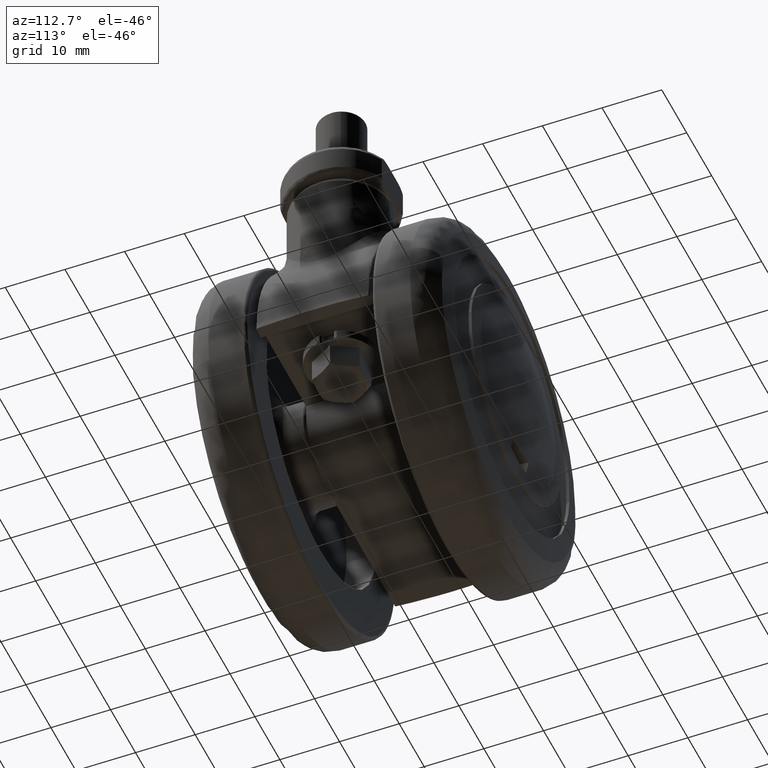
[diagram: clean part render]
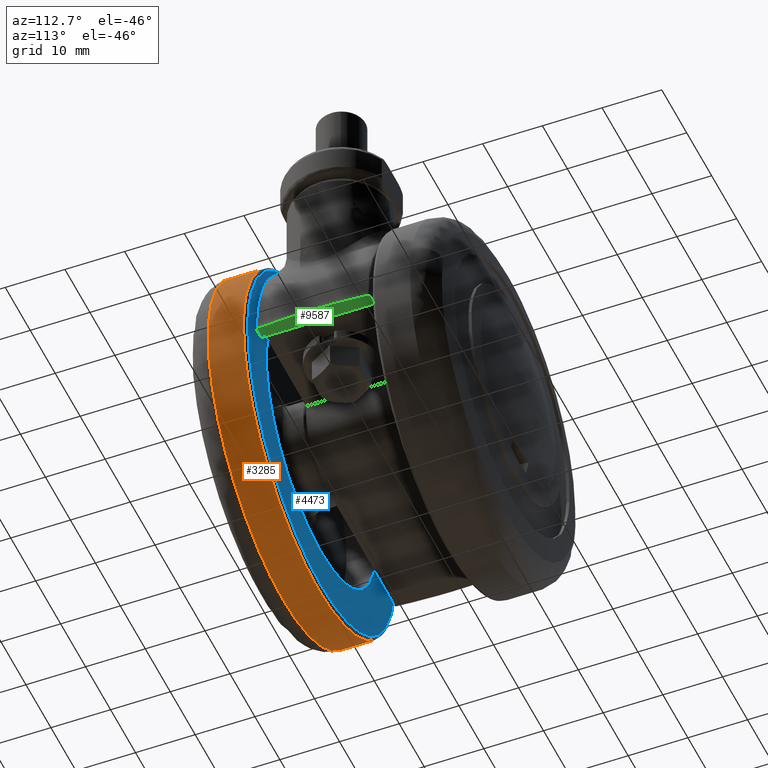
[diagram: same view with three faces highlighted in distinct colors, each labeled with its STEP entity id]
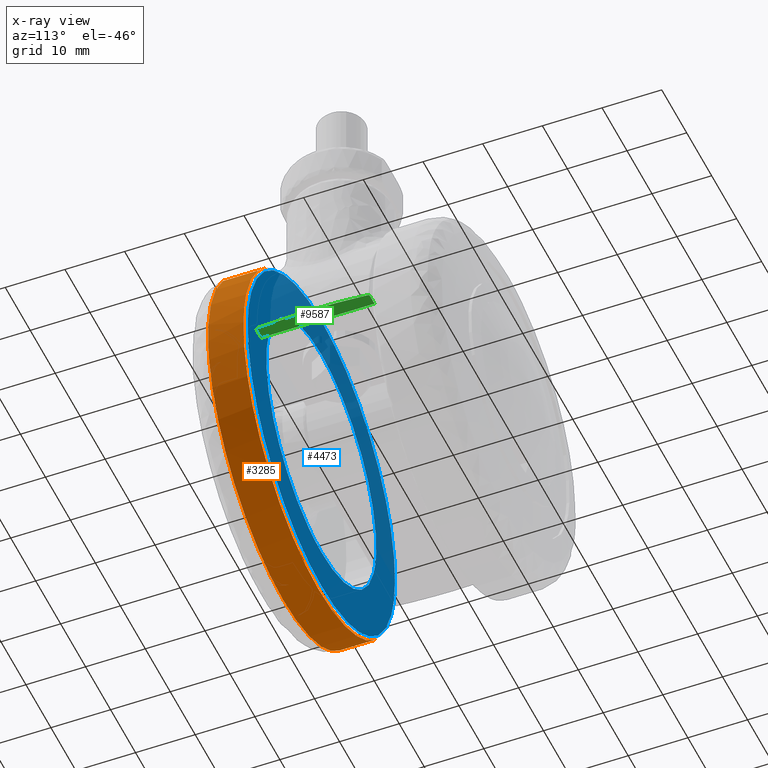
[diagram: x-ray of the same camera — body ghosted, the three highlighted faces saturated]
A machine part, auxiliary view with three faces highlighted in distinct colors.
The next image is the same camera in x-ray (body ghosted, the three faces saturated) — at least one of them is partly hidden behind the body in this view.
Their STEP definitions:

[orange] entity #3285 — the highlighted face is a freeform B-spline surface patch.
#3058=CARTESIAN_POINT('',(-22.686024778383850,-16.918165000004912,-19.630187970433401));
#3059=VERTEX_POINT('',#3058);
#3092=CARTESIAN_POINT('',(20.267704843404101,-16.918165000004809,22.118321373482441));
#3093=VERTEX_POINT('',#3092);
#3107=CARTESIAN_POINT('',(20.267704810230299,-10.999999999979490,22.118321403872638));
#3108=VERTEX_POINT('',#3107);
#3109=CARTESIAN_POINT('',(20.267704843404101,-16.918165000004809,22.118321373482441));
#3110=CARTESIAN_POINT('',(20.267704810230299,-10.999999999979490,22.118321403872638));
#3111=QUASI_UNIFORM_CURVE('',1,(#3109,#3110),.UNSPECIFIED.,.F.,.U.);
#3112=EDGE_CURVE('',#3093,#3108,#3111,.T.);
#3146=CARTESIAN_POINT('',(-22.686024877766950,-10.999999999973021,-19.630187855568810));
#3147=VERTEX_POINT('',#3146);
#3161=CARTESIAN_POINT('',(-22.686024778383850,-16.918165000004912,-19.630187970433401));
#3162=CARTESIAN_POINT('',(-22.686024877766950,-10.999999999973021,-19.630187855568810));
#3163=QUASI_UNIFORM_CURVE('',1,(#3161,#3162),.UNSPECIFIED.,.F.,.U.);
#3164=EDGE_CURVE('',#3059,#3147,#3163,.T.);
#3169=CARTESIAN_POINT('',(20.267706228469802,-17.066119125354120,22.118320104303709));
#3170=CARTESIAN_POINT('',(42.386026332773511,-17.066119125354120,1.850613875833911));
#3171=CARTESIAN_POINT('',(22.118320104303709,-17.066119125354120,-20.267706228469802));
#3172=CARTESIAN_POINT('',(1.850613875833911,-17.066119125354120,-42.386026332773511));
#3173=CARTESIAN_POINT('',(-20.267706228469802,-17.066119125354120,-22.118320104303709));
#3174=CARTESIAN_POINT('',(-21.548928258763837,-17.066119125354120,-20.944296417107388));
#3175=CARTESIAN_POINT('',(-22.686023273068901,-17.066119125354117,-19.630189710081133));
#3176=CARTESIAN_POINT('',(20.267706228469802,-10.848347021788159,22.118320104303709));
#3177=CARTESIAN_POINT('',(42.386026332773511,-10.848347021788157,1.850613875833911));
#3178=CARTESIAN_POINT('',(22.118320104303709,-10.848347021788159,-20.267706228469802));
#3179=CARTESIAN_POINT('',(1.850613875833911,-10.848347021788157,-42.386026332773511));
#3180=CARTESIAN_POINT('',(-20.267706228469802,-10.848347021788159,-22.118320104303709));
#3181=CARTESIAN_POINT('',(-21.548928258763837,-10.848347021788157,-20.944296417107388));
#3182=CARTESIAN_POINT('',(-22.686023273068901,-10.848347021788161,-19.630189710081133));
#3190=(BOUNDED_SURFACE()B_SPLINE_SURFACE(2,1,((#3169,#3176),(#3170,#3177),(#3171,#3178),(#3172,#3179),(#3173,#3180),(#3174,#3181),(#3175,#3182)),.UNSPECIFIED.,.F.,.F.,.U.)B_SPLINE_SURFACE_WITH_KNOTS((3,2,2,3),(2,2),(0.0,49.705627484771377,99.411254969542767,103.387705168324500),(0.0,6.217772103565968),.UNSPECIFIED.)GEOMETRIC_REPRESENTATION_ITEM()RATIONAL_B_SPLINE_SURFACE(((1.0,1.0),(0.707106781186548,0.707106781186548),(1.0,1.0),(0.707106781186548,0.707106781186548),(1.0,1.0),(0.976568542494924,0.976568542494924),(0.956886118190660,0.956886118190660)))REPRESENTATION_ITEM('')SURFACE());
#3191=CARTESIAN_POINT('',(0.0,-16.918165000004851,-30.0));
#3192=VERTEX_POINT('',#3191);
#3193=CARTESIAN_POINT('',(0.0,-16.918165000004851,-30.0));
#3194=CARTESIAN_POINT('',(-13.713039808693940,-16.918165000004848,-29.999999999999993));
#3195=CARTESIAN_POINT('',(-22.686024778383853,-16.918165000004901,-19.630187970433411));
#3203=(BOUNDED_CURVE()B_SPLINE_CURVE(2,(#3193,#3194,#3195),.UNSPECIFIED.,.F.,.U.)B_SPLINE_CURVE_WITH_KNOTS((3,3),(0.500000000000000,0.635882131534335),.UNSPECIFIED.)CURVE()GEOMETRIC_REPRESENTATION_ITEM()RATIONAL_B_SPLINE_CURVE((1.0,0.840804180462702,0.854663299246072))REPRESENTATION_ITEM(''));
#3204=EDGE_CURVE('',#3192,#3059,#3203,.T.);
#3205=ORIENTED_EDGE('',*,*,#3204,.T.);
#3206=ORIENTED_EDGE('',*,*,#3164,.T.);
#3207=CARTESIAN_POINT('',(0.0,-11.0,-30.0));
#3208=VERTEX_POINT('',#3207);
#3209=CARTESIAN_POINT('',(0.0,-11.0,-30.0));
#3210=CARTESIAN_POINT('',(-13.713039900497545,-11.0,-30.0));
#3211=CARTESIAN_POINT('',(-22.686024877766954,-10.999999999973021,-19.630187855568817));
#3219=(BOUNDED_CURVE()B_SPLINE_CURVE(2,(#3209,#3210,#3211),.UNSPECIFIED.,.F.,.U.)B_SPLINE_CURVE_WITH_KNOTS((3,3),(0.500000000000000,0.635882132299198),.UNSPECIFIED.)CURVE()GEOMETRIC_REPRESENTATION_ITEM()RATIONAL_B_SPLINE_CURVE((1.0,0.840804179566610,0.854663299402094))REPRESENTATION_ITEM(''));
#3220=EDGE_CURVE('',#3208,#3147,#3219,.T.);
#3221=ORIENTED_EDGE('',*,*,#3220,.F.);
#3222=CARTESIAN_POINT('',(29.990525678497470,-10.999999999923910,0.753902863360767));
#3223=VERTEX_POINT('',#3222);
#3224=CARTESIAN_POINT('',(29.990525678497473,-10.999999999923912,0.753902863360767));
#3225=CARTESIAN_POINT('',(30.0,-11.000000000000007,0.377010963762058));
#3226=CARTESIAN_POINT('',(30.0,-11.0,0.0));
#3227=CARTESIAN_POINT('',(29.999999999999993,-11.0,-29.999999999999993));
#3228=CARTESIAN_POINT('',(0.0,-11.0,-30.0));
#3236=(BOUNDED_CURVE()B_SPLINE_CURVE(2,(#3224,#3225,#3226,#3227,#3228),.UNSPECIFIED.,.F.,.U.)B_SPLINE_CURVE_WITH_KNOTS((3,2,3),(0.245579891769100,0.250000000000000,0.500000000000000),.UNSPECIFIED.)CURVE()GEOMETRIC_REPRESENTATION_ITEM()RATIONAL_B_SPLINE_CURVE((0.989826157679977,0.994821521090991,1.0,0.707106781186547,1.0))REPRESENTATION_ITEM(''));
#3237=EDGE_CURVE('',#3223,#3208,#3236,.T.);
#3238=ORIENTED_EDGE('',*,*,#3237,.F.);
#3239=CARTESIAN_POINT('',(20.267704810230306,-10.999999999979494,22.118321403872631));
#3240=CARTESIAN_POINT('',(29.670046900068591,-10.999999999957080,13.502663347258199));
#3241=CARTESIAN_POINT('',(29.990525678497473,-10.999999999923912,0.753902863360767));
#3249=(BOUNDED_CURVE()B_SPLINE_CURVE(2,(#3239,#3240,#3241),.UNSPECIFIED.,.F.,.U.)B_SPLINE_CURVE_WITH_KNOTS((3,3),(0.118415199404387,0.245579891769100),.UNSPECIFIED.)CURVE()GEOMETRIC_REPRESENTATION_ITEM()RATIONAL_B_SPLINE_CURVE((0.853959782032748,0.846111610834534,0.989826157679977))REPRESENTATION_ITEM(''));
#3250=EDGE_CURVE('',#3108,#3223,#3249,.T.);
#3251=ORIENTED_EDGE('',*,*,#3250,.F.);
#3252=ORIENTED_EDGE('',*,*,#3112,.F.);
#3253=CARTESIAN_POINT('',(29.600578326233350,-16.918165000343631,-4.879114955862821));
#3254=VERTEX_POINT('',#3253);
#3255=CARTESIAN_POINT('',(20.267704843404101,-16.918165000004816,22.118321373482434));
#3256=CARTESIAN_POINT('',(30.000000000000004,-16.918165000004858,13.200317047925488));
#3257=CARTESIAN_POINT('',(30.0,-16.918165000004851,0.0));
#3258=CARTESIAN_POINT('',(30.000000000000004,-16.918165000004848,-2.455906516127785));
#3259=CARTESIAN_POINT('',(29.600578326233347,-16.918165000343635,-4.879114955862821));
#3267=(BOUNDED_CURVE()B_SPLINE_CURVE(2,(#3255,#3256,#3257,#3258,#3259),.UNSPECIFIED.,.F.,.U.)B_SPLINE_CURVE_WITH_KNOTS((3,2,3),(0.118415199630833,0.250000000000000,0.277993891200695),.UNSPECIFIED.)CURVE()GEOMETRIC_REPRESENTATION_ITEM()RATIONAL_B_SPLINE_CURVE((0.853959782004798,0.845838817091796,1.0,0.967203116396460,0.941751131923474))REPRESENTATION_ITEM(''));
#3268=EDGE_CURVE('',#3093,#3254,#3267,.T.);
#3269=ORIENTED_EDGE('',*,*,#3268,.T.);
#3270=CARTESIAN_POINT('',(29.600578326233347,-16.918165000343635,-4.879114955862821));
#3271=CARTESIAN_POINT('',(25.459859027679762,-16.918165000004844,-30.000000000000004));
#3272=CARTESIAN_POINT('',(0.0,-16.918165000004851,-30.0));
#3280=(BOUNDED_CURVE()B_SPLINE_CURVE(2,(#3270,#3271,#3272),.UNSPECIFIED.,.F.,.U.)B_SPLINE_CURVE_WITH_KNOTS((3,3),(0.277993891200695,0.500000000000000),.UNSPECIFIED.)CURVE()GEOMETRIC_REPRESENTATION_ITEM()RATIONAL_B_SPLINE_CURVE((0.941751131923474,0.739903664790088,1.0))REPRESENTATION_ITEM(''));
#3281=EDGE_CURVE('',#3254,#3192,#3280,.T.);
#3282=ORIENTED_EDGE('',*,*,#3281,.T.);
#3283=EDGE_LOOP('',(#3205,#3206,#3221,#3238,#3251,#3252,#3269,#3282));
#3284=FACE_OUTER_BOUND('',#3283,.T.);
#3285=ADVANCED_FACE('',(#3284),#3190,.T.);

[blue] entity #4473 — the highlighted face is a freeform B-spline surface patch.
#3569=CARTESIAN_POINT('',(21.846210545415929,-10.500000000000000,2.596745040486427));
#3570=VERTEX_POINT('',#3569);
#3576=CARTESIAN_POINT('',(0.0,-10.500000000000000,-22.0));
#3577=VERTEX_POINT('',#3576);
#3578=CARTESIAN_POINT('',(21.846210545415925,-10.500000000000002,2.596745040486427));
#3579=CARTESIAN_POINT('',(21.999999999999996,-10.499999999999995,1.302926528428946));
#3580=CARTESIAN_POINT('',(22.0,-10.500000000000000,0.0));
#3581=CARTESIAN_POINT('',(22.000000000000007,-10.500000000000002,-22.000000000000007));
#3582=CARTESIAN_POINT('',(0.0,-10.500000000000000,-22.0));
#3590=(BOUNDED_CURVE()B_SPLINE_CURVE(2,(#3578,#3579,#3580,#3581,#3582),.UNSPECIFIED.,.F.,.U.)B_SPLINE_CURVE_WITH_KNOTS((3,2,3),(0.229562536347507,0.250000000000000,0.500000000000000),.UNSPECIFIED.)CURVE()GEOMETRIC_REPRESENTATION_ITEM()RATIONAL_B_SPLINE_CURVE((0.956026877340945,0.976056021945754,1.0,0.707106781186548,1.0))REPRESENTATION_ITEM(''));
#3591=EDGE_CURVE('',#3570,#3577,#3590,.T.);
#3593=CARTESIAN_POINT('',(-21.958967068182321,-10.500000000000000,-1.343043297097410));
#3594=VERTEX_POINT('',#3593);
#3595=CARTESIAN_POINT('',(0.0,-10.500000000000000,-22.0));
#3596=CARTESIAN_POINT('',(-20.695556674067721,-10.500000000000000,-22.000000000000004));
#3597=CARTESIAN_POINT('',(-21.958967068182321,-10.499999999999996,-1.343043297097410));
#3605=(BOUNDED_CURVE()B_SPLINE_CURVE(2,(#3595,#3596,#3597),.UNSPECIFIED.,.F.,.U.)B_SPLINE_CURVE_WITH_KNOTS((3,3),(0.500000000000000,0.739333155326466),.UNSPECIFIED.)CURVE()GEOMETRIC_REPRESENTATION_ITEM()RATIONAL_B_SPLINE_CURVE((1.0,0.719603767070605,0.976072455490385))REPRESENTATION_ITEM(''));
#3606=EDGE_CURVE('',#3577,#3594,#3605,.T.);
#3680=CARTESIAN_POINT('',(0.0,-10.500000000000000,22.0));
#3681=VERTEX_POINT('',#3680);
#3682=CARTESIAN_POINT('',(-21.958967068182321,-10.499999999999996,-1.343043297097410));
#3683=CARTESIAN_POINT('',(-22.0,-10.499999999999996,-0.672148471785602));
#3684=CARTESIAN_POINT('',(-22.0,-10.500000000000000,0.0));
#3685=CARTESIAN_POINT('',(-22.000000000000007,-10.500000000000002,22.000000000000007));
#3686=CARTESIAN_POINT('',(0.0,-10.500000000000000,22.0));
#3694=(BOUNDED_CURVE()B_SPLINE_CURVE(2,(#3682,#3683,#3684,#3685,#3686),.UNSPECIFIED.,.F.,.U.)B_SPLINE_CURVE_WITH_KNOTS((3,2,3),(0.739333155326466,0.750000000000000,1.0),.UNSPECIFIED.)CURVE()GEOMETRIC_REPRESENTATION_ITEM()RATIONAL_B_SPLINE_CURVE((0.976072455490385,0.987503014115942,1.0,0.707106781186548,1.0))REPRESENTATION_ITEM(''));
#3695=EDGE_CURVE('',#3594,#3681,#3694,.T.);
#3697=CARTESIAN_POINT('',(0.0,-10.500000000000000,22.0));
#3698=CARTESIAN_POINT('',(19.539846886573066,-10.500000000000002,21.999999999999996));
#3699=CARTESIAN_POINT('',(21.846210545415932,-10.500000000000000,2.596745040486427));
#3707=(BOUNDED_CURVE()B_SPLINE_CURVE(2,(#3697,#3698,#3699),.UNSPECIFIED.,.F.,.U.)B_SPLINE_CURVE_WITH_KNOTS((3,3),(0.0,0.229562536347507),.UNSPECIFIED.)CURVE()GEOMETRIC_REPRESENTATION_ITEM()RATIONAL_B_SPLINE_CURVE((1.0,0.731050759240794,0.956026877340946))REPRESENTATION_ITEM(''));
#3708=EDGE_CURVE('',#3681,#3570,#3707,.T.);
#4204=CARTESIAN_POINT('',(-29.490683629105199,-10.500000000000000,-0.741337817106431));
#4205=VERTEX_POINT('',#4204);
#4219=CARTESIAN_POINT('',(0.0,-10.500000000000000,-29.500000000000000));
#4220=VERTEX_POINT('',#4219);
#4221=CARTESIAN_POINT('',(0.0,-10.500000000000000,-29.500000000000000));
#4222=CARTESIAN_POINT('',(-28.767747346567329,-10.500000000000000,-29.500000000000000));
#4223=CARTESIAN_POINT('',(-29.490683629105195,-10.499999999999998,-0.741337817106431));
#4231=(BOUNDED_CURVE()B_SPLINE_CURVE(2,(#4221,#4222,#4223),.UNSPECIFIED.,.F.,.U.)B_SPLINE_CURVE_WITH_KNOTS((3,3),(0.500000000000000,0.745579891765175),.UNSPECIFIED.)CURVE()GEOMETRIC_REPRESENTATION_ITEM()RATIONAL_B_SPLINE_CURVE((1.0,0.712285260100154,0.989826157671106))REPRESENTATION_ITEM(''));
#4232=EDGE_CURVE('',#4220,#4205,#4231,.T.);
#4234=CARTESIAN_POINT('',(29.490683629105199,-10.500000000000000,0.741337817106429));
#4235=VERTEX_POINT('',#4234);
#4236=CARTESIAN_POINT('',(29.490683629105195,-10.500000000000005,0.741337817106429));
#4237=CARTESIAN_POINT('',(29.499999999999996,-10.499999999999998,0.370727448030166));
#4238=CARTESIAN_POINT('',(29.500000000000000,-10.500000000000000,0.0));
#4239=CARTESIAN_POINT('',(29.499999999999996,-10.500000000000002,-29.499999999999996));
#4240=CARTESIAN_POINT('',(0.0,-10.500000000000000,-29.500000000000000));
#4248=(BOUNDED_CURVE()B_SPLINE_CURVE(2,(#4236,#4237,#4238,#4239,#4240),.UNSPECIFIED.,.F.,.U.)B_SPLINE_CURVE_WITH_KNOTS((3,2,3),(0.245579891765176,0.250000000000000,0.500000000000000),.UNSPECIFIED.)CURVE()GEOMETRIC_REPRESENTATION_ITEM()RATIONAL_B_SPLINE_CURVE((0.989826157671108,0.994821521086394,1.0,0.707106781186548,1.0))REPRESENTATION_ITEM(''));
#4249=EDGE_CURVE('',#4235,#4220,#4248,.T.);
#4293=CARTESIAN_POINT('',(0.0,-10.500000000000000,29.500000000000000));
#4294=VERTEX_POINT('',#4293);
#4295=CARTESIAN_POINT('',(0.0,-10.500000000000000,29.500000000000000));
#4296=CARTESIAN_POINT('',(28.767747346567482,-10.500000000000000,29.499999999999986));
#4297=CARTESIAN_POINT('',(29.490683629105202,-10.500000000000005,0.741337817106429));
#4305=(BOUNDED_CURVE()B_SPLINE_CURVE(2,(#4295,#4296,#4297),.UNSPECIFIED.,.F.,.U.)B_SPLINE_CURVE_WITH_KNOTS((3,3),(0.0,0.245579891765176),.UNSPECIFIED.)CURVE()GEOMETRIC_REPRESENTATION_ITEM()RATIONAL_B_SPLINE_CURVE((1.0,0.712285260100153,0.989826157671108))REPRESENTATION_ITEM(''));
#4306=EDGE_CURVE('',#4294,#4235,#4305,.T.);
#4308=CARTESIAN_POINT('',(-29.490683629105199,-10.500000000000007,-0.741337817106431));
#4309=CARTESIAN_POINT('',(-29.500000000000000,-10.499999999999998,-0.370727448030168));
#4310=CARTESIAN_POINT('',(-29.500000000000000,-10.500000000000000,0.0));
#4311=CARTESIAN_POINT('',(-29.499999999999996,-10.500000000000002,29.499999999999996));
#4312=CARTESIAN_POINT('',(0.0,-10.500000000000000,29.500000000000000));
#4320=(BOUNDED_CURVE()B_SPLINE_CURVE(2,(#4308,#4309,#4310,#4311,#4312),.UNSPECIFIED.,.F.,.U.)B_SPLINE_CURVE_WITH_KNOTS((3,2,3),(0.745579891765176,0.750000000000000,1.0),.UNSPECIFIED.)CURVE()GEOMETRIC_REPRESENTATION_ITEM()RATIONAL_B_SPLINE_CURVE((0.989826157671108,0.994821521086394,1.0,0.707106781186548,1.0))REPRESENTATION_ITEM(''));
#4321=EDGE_CURVE('',#4205,#4294,#4320,.T.);
#4456=CARTESIAN_POINT('',(-32.436803916685207,-10.500000000000000,32.447049885646557));
#4457=CARTESIAN_POINT('',(-32.436803916685207,-10.500000000000000,-32.447051468149873));
#4458=CARTESIAN_POINT('',(32.436804444019728,-10.500000000000000,32.447049885646557));
#4459=CARTESIAN_POINT('',(32.436804444019728,-10.500000000000000,-32.447051468149873));
#4460=B_SPLINE_SURFACE_WITH_KNOTS('',1,1,((#4456,#4458),(#4457,#4459)),.UNSPECIFIED.,.F.,.F.,.U.,(2,2),(2,2),(0.0,64.894101353796430),(0.0,64.873608360704935),.UNSPECIFIED.);
#4461=ORIENTED_EDGE('',*,*,#4306,.T.);
#4462=ORIENTED_EDGE('',*,*,#4249,.T.);
#4463=ORIENTED_EDGE('',*,*,#4232,.T.);
#4464=ORIENTED_EDGE('',*,*,#4321,.T.);
#4465=EDGE_LOOP('',(#4461,#4462,#4463,#4464));
#4466=FACE_OUTER_BOUND('',#4465,.T.);
#4467=ORIENTED_EDGE('',*,*,#3606,.F.);
#4468=ORIENTED_EDGE('',*,*,#3591,.F.);
#4469=ORIENTED_EDGE('',*,*,#3708,.F.);
#4470=ORIENTED_EDGE('',*,*,#3695,.F.);
#4471=EDGE_LOOP('',(#4467,#4468,#4469,#4470));
#4472=FACE_BOUND('',#4471,.T.);
#4473=ADVANCED_FACE('',(#4466,#4472),#4460,.F.);

[green] entity #9587 — the highlighted face is a freeform B-spline surface patch.
#9195=CARTESIAN_POINT('',(28.605220391671100,-9.225721352359141,0.0));
#9196=VERTEX_POINT('',#9195);
#9236=CARTESIAN_POINT('',(28.306325072147999,-9.500000000000000,0.0));
#9237=VERTEX_POINT('',#9236);
#9255=CARTESIAN_POINT('',(28.605220391671100,-9.225721352359141,0.0));
#9256=CARTESIAN_POINT('',(28.581617420062788,-9.500000000000000,0.0));
#9257=CARTESIAN_POINT('',(28.306325072147999,-9.500000000000000,0.0));
#9265=(BOUNDED_CURVE()B_SPLINE_CURVE(2,(#9255,#9256,#9257),.UNSPECIFIED.,.F.,.U.)CURVE()GEOMETRIC_REPRESENTATION_ITEM()QUASI_UNIFORM_CURVE()RATIONAL_B_SPLINE_CURVE((1.0,0.736796390191054,1.0))REPRESENTATION_ITEM(''));
#9266=EDGE_CURVE('',#9196,#9237,#9265,.T.);
#9310=CARTESIAN_POINT('',(28.599384364511199,9.225910421117030,0.0));
#9311=VERTEX_POINT('',#9310);
#9325=CARTESIAN_POINT('',(28.300505375491351,9.500000000000000,0.0));
#9326=VERTEX_POINT('',#9325);
#9327=CARTESIAN_POINT('',(28.300505375491351,9.500000000000000,0.0));
#9328=CARTESIAN_POINT('',(28.575622987253027,9.500000000000000,0.0));
#9329=CARTESIAN_POINT('',(28.599384364511220,9.225910421117032,0.0));
#9337=(BOUNDED_CURVE()B_SPLINE_CURVE(2,(#9327,#9328,#9329),.UNSPECIFIED.,.F.,.U.)CURVE()GEOMETRIC_REPRESENTATION_ITEM()QUASI_UNIFORM_CURVE()RATIONAL_B_SPLINE_CURVE((1.0,0.737010200197429,1.0))REPRESENTATION_ITEM(''));
#9338=EDGE_CURVE('',#9326,#9311,#9337,.T.);
#9412=CARTESIAN_POINT('',(26.499994437213001,-9.500000000000000,0.0));
#9413=VERTEX_POINT('',#9412);
#9428=CARTESIAN_POINT('',(26.499994437213001,9.500000000000000,0.0));
#9429=VERTEX_POINT('',#9428);
#9435=CARTESIAN_POINT('',(26.499994437213001,9.500000000000000,0.0));
#9436=CARTESIAN_POINT('',(26.499994437213001,-9.500000000000000,0.0));
#9437=QUASI_UNIFORM_CURVE('',1,(#9435,#9436),.UNSPECIFIED.,.F.,.U.);
#9438=EDGE_CURVE('',#9429,#9413,#9437,.T.);
#9554=CARTESIAN_POINT('',(26.375119290182191,-10.449049963174311,0.0));
#9555=CARTESIAN_POINT('',(29.124869246564831,-10.449049963174311,0.0));
#9556=CARTESIAN_POINT('',(26.375119290182191,10.449050472794021,0.0));
#9557=CARTESIAN_POINT('',(29.124869246564831,10.449050472794021,0.0));
#9558=B_SPLINE_SURFACE_WITH_KNOTS('',1,1,((#9554,#9556),(#9555,#9557)),.UNSPECIFIED.,.F.,.F.,.U.,(2,2),(2,2),(0.0,2.749749956382637),(0.0,20.898100435968342),.UNSPECIFIED.);
#9559=CARTESIAN_POINT('',(28.300505375491351,9.500000000000000,0.0));
#9560=CARTESIAN_POINT('',(26.499994437213001,9.500000000000000,0.0));
#9561=QUASI_UNIFORM_CURVE('',1,(#9559,#9560),.UNSPECIFIED.,.F.,.U.);
#9562=EDGE_CURVE('',#9326,#9429,#9561,.T.);
#9563=ORIENTED_EDGE('',*,*,#9562,.F.);
#9564=ORIENTED_EDGE('',*,*,#9338,.T.);
#9565=CARTESIAN_POINT('',(28.605220391671100,-9.225721352359141,0.0));
#9566=CARTESIAN_POINT('',(29.399167062955854,0.000346573006225,0.0));
#9567=CARTESIAN_POINT('',(28.599384364511199,9.225910421117030,0.0));
#9575=(BOUNDED_CURVE()B_SPLINE_CURVE(2,(#9565,#9566,#9567),.UNSPECIFIED.,.F.,.U.)CURVE()GEOMETRIC_REPRESENTATION_ITEM()QUASI_UNIFORM_CURVE()RATIONAL_B_SPLINE_CURVE((1.0,0.996290564071736,1.0))REPRESENTATION_ITEM(''));
#9576=EDGE_CURVE('',#9196,#9311,#9575,.T.);
#9577=ORIENTED_EDGE('',*,*,#9576,.F.);
#9578=ORIENTED_EDGE('',*,*,#9266,.T.);
#9579=CARTESIAN_POINT('',(28.306325072147999,-9.500000000000000,0.0));
#9580=CARTESIAN_POINT('',(26.499994437213001,-9.500000000000000,0.0));
#9581=QUASI_UNIFORM_CURVE('',1,(#9579,#9580),.UNSPECIFIED.,.F.,.U.);
#9582=EDGE_CURVE('',#9237,#9413,#9581,.T.);
#9583=ORIENTED_EDGE('',*,*,#9582,.T.);
#9584=ORIENTED_EDGE('',*,*,#9438,.F.);
#9585=EDGE_LOOP('',(#9563,#9564,#9577,#9578,#9583,#9584));
#9586=FACE_OUTER_BOUND('',#9585,.T.);
#9587=ADVANCED_FACE('',(#9586),#9558,.F.);